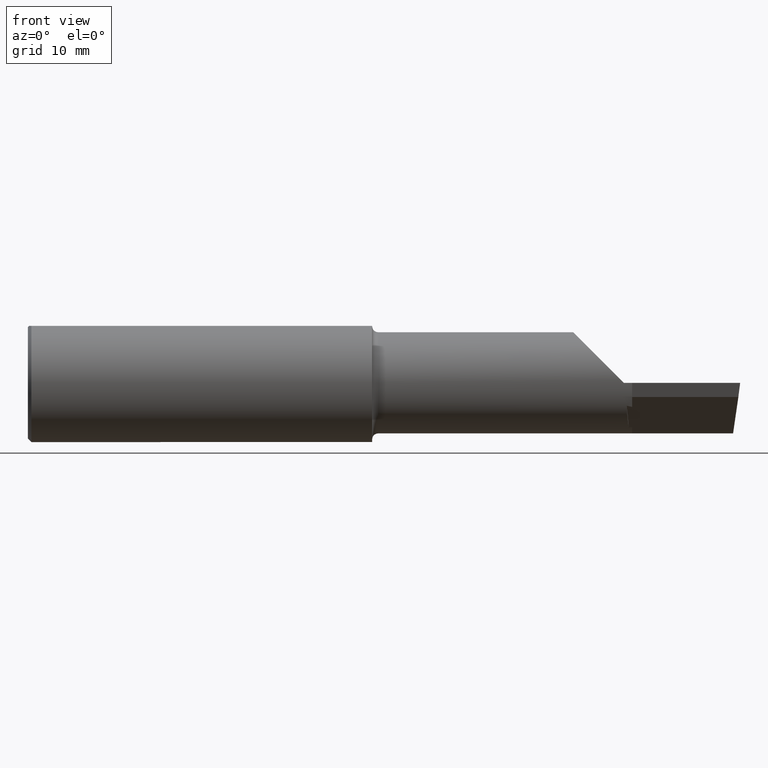
[diagram: clean part render]
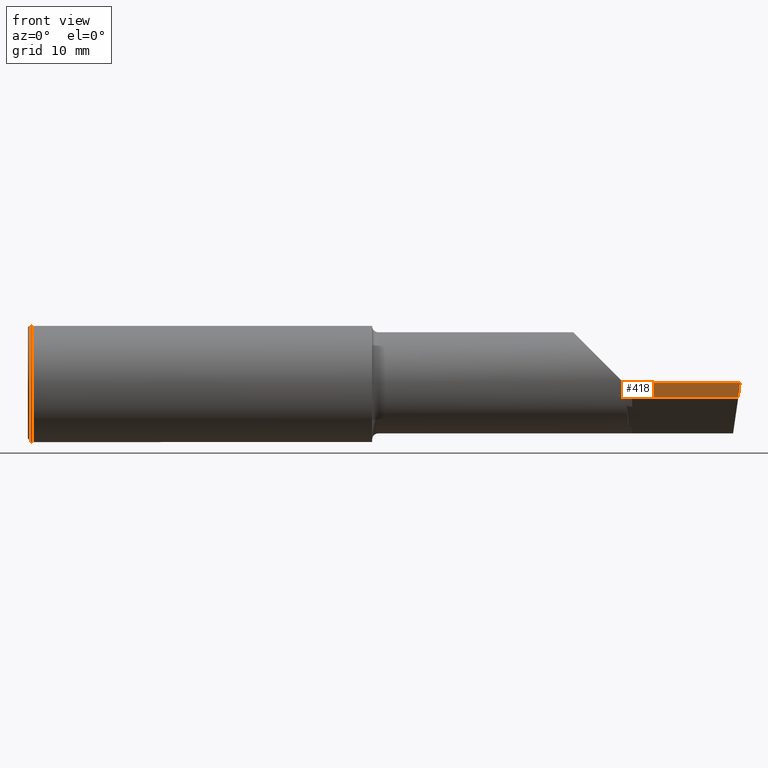
[diagram: same view with one face highlighted and labeled with its STEP entity id]
A machine part, front view. The second image highlights one B-rep face of the part: STEP entity #418.
In plain terms, the highlighted planar face has unit normal (0.0914, 0.9493, 0.3007).
Its self-contained STEP definition (entity closure, byte-faithful):
#6 = VERTEX_POINT ( 'NONE', #417 ) ;
#20 = CARTESIAN_POINT ( 'NONE',  ( 2.519046046773246061, -0.1728339770796962771, -0.05999999999999962308 ) ) ;
#24 = CARTESIAN_POINT ( 'NONE',  ( 2.545000000000000373, -0.1753330585328639335, -0.05999999999999962308 ) ) ;
#26 = AXIS2_PLACEMENT_3D ( 'NONE', #583, #172, #645 ) ;
#67 = VERTEX_POINT ( 'NONE', #24 ) ;
#76 = CARTESIAN_POINT ( 'NONE',  ( 2.545000000000000373, -0.1943384830701201382, 6.925661515187917647E-16 ) ) ;
#101 = CARTESIAN_POINT ( 'NONE',  ( 2.545000000000000373, -0.1952503421026562103, 0.002878732955684672624 ) ) ;
#108 = LINE ( 'NONE', #101, #434 ) ;
#118 = DIRECTION ( 'NONE',  ( 0.9953961983671787417, -0.09584575252022418945, -1.044132340447638199E-16 ) ) ;
#170 = VERTEX_POINT ( 'NONE', #294 ) ;
#172 = DIRECTION ( 'NONE',  ( 0.09140971883575742252, 0.9493262270931228652, 0.3007057995042735632 ) ) ;
#213 = EDGE_CURVE ( 'NONE', #67, #561, #108, .T. ) ;
#251 = ORIENTED_EDGE ( 'NONE', *, *, #566, .T. ) ;
#269 = VECTOR ( 'NONE', #118, 39.37007874015748143 ) ;
#294 = CARTESIAN_POINT ( 'NONE',  ( 2.992367153641838584, -0.2184096159518786329, -0.05999999999999964390 ) ) ;
#360 = ORIENTED_EDGE ( 'NONE', *, *, #673, .F. ) ;
#361 = FACE_OUTER_BOUND ( 'NONE', #535, .T. ) ;
#404 = EDGE_CURVE ( 'NONE', #561, #6, #412, .T. ) ;
#412 = LINE ( 'NONE', #700, #269 ) ;
#417 = CARTESIAN_POINT ( 'NONE',  ( 3.000000000000000888, -0.2381500000000003614, 7.000360483764674127E-16 ) ) ;
#418 = ADVANCED_FACE ( 'NONE', ( #361 ), #591, .F. ) ;
#434 = VECTOR ( 'NONE', #693, 39.37007874015748854 ) ;
#505 = CARTESIAN_POINT ( 'NONE',  ( 2.983858394183929619, -0.1964039090909504293, -0.1268853457175431465 ) ) ;
#535 = EDGE_LOOP ( 'NONE', ( #360, #616, #574, #251 ) ) ;
#537 = VECTOR ( 'NONE', #578, 39.37007874015748143 ) ;
#549 = LINE ( 'NONE', #20, #756 ) ;
#561 = VERTEX_POINT ( 'NONE', #76 ) ;
#566 = EDGE_CURVE ( 'NONE', #67, #170, #549, .T. ) ;
#574 = ORIENTED_EDGE ( 'NONE', *, *, #213, .F. ) ;
#578 = DIRECTION ( 'NONE',  ( -0.1199690778467078223, 0.3102690083707252411, -0.9430485474275740465 ) ) ;
#583 = CARTESIAN_POINT ( 'NONE',  ( 2.519046046773246061, -0.1728339770796962771, -0.05999999999999962308 ) ) ;
#591 = PLANE ( 'NONE',  #26 ) ;
#614 = DIRECTION ( 'NONE',  ( 0.9953961983671787417, -0.09584575252022421721, -0.000000000000000000 ) ) ;
#616 = ORIENTED_EDGE ( 'NONE', *, *, #404, .F. ) ;
#631 = LINE ( 'NONE', #505, #537 ) ;
#645 = DIRECTION ( 'NONE',  ( 0.000000000000000000, -0.3019700370129914657, 0.9533174165755980978 ) ) ;
#673 = EDGE_CURVE ( 'NONE', #6, #170, #631, .T. ) ;
#693 = DIRECTION ( 'NONE',  ( 0.000000000000000000, -0.3019700370129914657, 0.9533174165755980978 ) ) ;
#700 = CARTESIAN_POINT ( 'NONE',  ( 3.001130543297605868, -0.2382588589380728039, 3.755096476918726425E-16 ) ) ;
#756 = VECTOR ( 'NONE', #614, 39.37007874015748143 ) ;